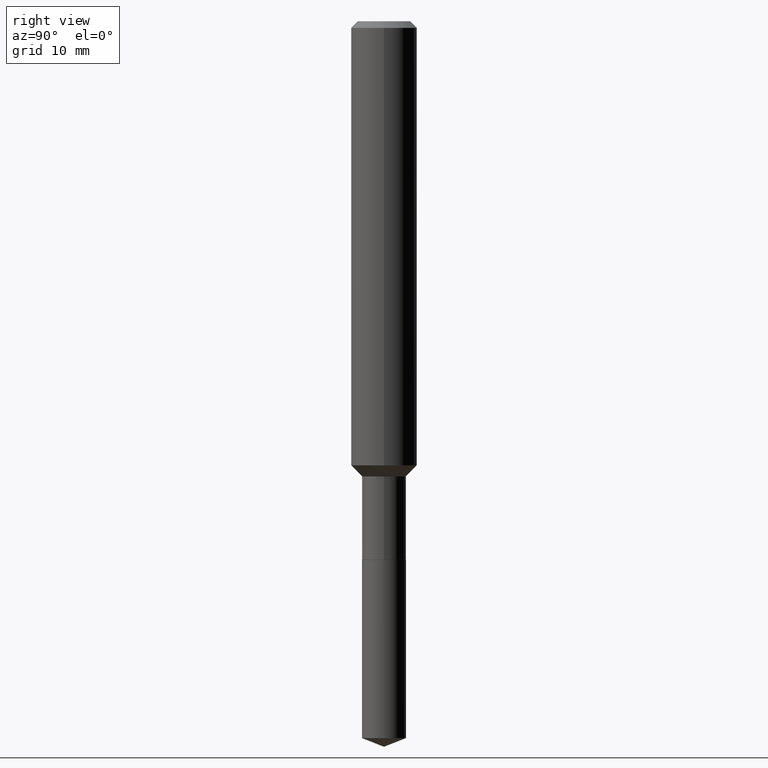
[diagram: clean part render]
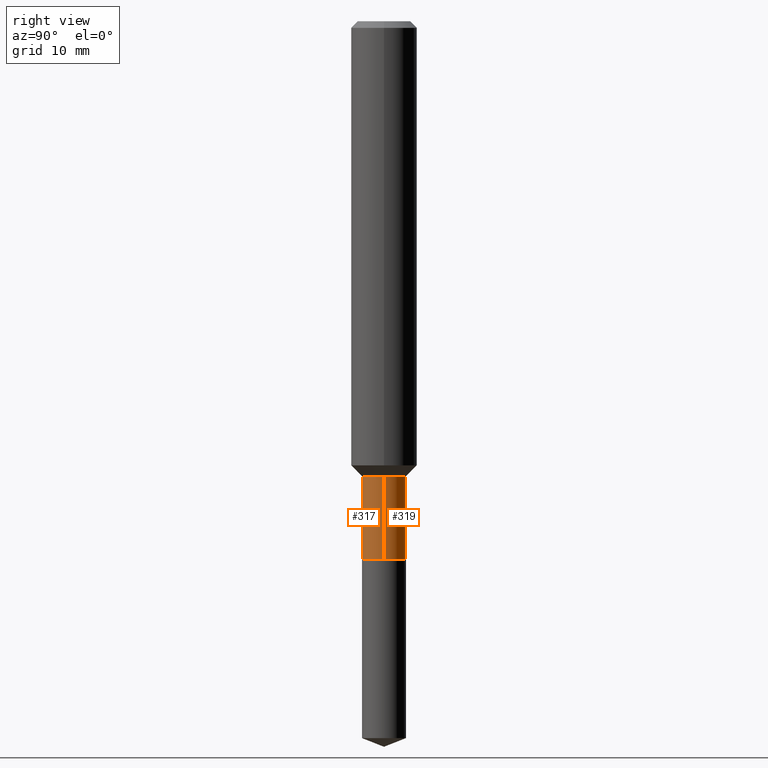
[diagram: same view with one multi-face feature highlighted, each face labeled with its STEP entity id]
A machine part, right view. The highlighted faces form ONE feature: a constant-radius fillet chain: 2 tangent blend faces with common blend radius 2.0002 mm. The faces share edges in the B-rep.
Their STEP definitions:
[1] entity #319 (Cylinder):
#11 = DIRECTION ( 'NONE',  ( -2.445468806185136597E-29, 3.491481338843145583E-15, 1.000000000000000000 ) ) ;
#15 = CARTESIAN_POINT ( 'NONE',  ( 4.716331139608654438E-29, -6.733670910092890989E-15, -1.928600000000000092 ) ) ;
#19 = DIRECTION ( 'NONE',  ( -2.445468806185136877E-29, 3.491481338843145188E-15, 1.000000000000000000 ) ) ;
#30 = AXIS2_PLACEMENT_3D ( 'NONE', #383, #50, #201 ) ;
#50 = DIRECTION ( 'NONE',  ( -2.445468806185136597E-29, 3.491481338843145583E-15, 1.000000000000000000 ) ) ;
#55 = CARTESIAN_POINT ( 'NONE',  ( -0.07874999999999997280, 5.595524044110787031E-16, -3.873661383575737091E-30 ) ) ;
#57 = CARTESIAN_POINT ( 'NONE',  ( -0.07874999999999995892, -5.652665767725588167E-15, -1.629899999999999682 ) ) ;
#64 = VECTOR ( 'NONE', #19, 39.37007874015748143 ) ;
#98 = VERTEX_POINT ( 'NONE', #378 ) ;
#104 = DIRECTION ( 'NONE',  ( 1.000000000000000000, -6.982962677686267499E-15, 4.876176775795935793E-29 ) ) ;
#130 = EDGE_LOOP ( 'NONE', ( #392, #286, #175, #474 ) ) ;
#132 = CIRCLE ( 'NONE', #429, 0.07875000000000000056 ) ;
#133 = CARTESIAN_POINT ( 'NONE',  ( 0.000000000000000000, 0.000000000000000000, 0.000000000000000000 ) ) ;
#160 = DIRECTION ( 'NONE',  ( 1.000000000000000000, -6.982962677686261977E-15, 0.000000000000000000 ) ) ;
#174 = CARTESIAN_POINT ( 'NONE',  ( 0.07875000000000000056, -7.283579220960683546E-15, -1.928600000000000092 ) ) ;
#175 = ORIENTED_EDGE ( 'NONE', *, *, #179, .F. ) ;
#179 = EDGE_CURVE ( 'NONE', #98, #196, #446, .T. ) ;
#196 = VERTEX_POINT ( 'NONE', #57 ) ;
#199 = LINE ( 'NONE', #55, #439 ) ;
#201 = DIRECTION ( 'NONE',  ( 1.000000000000000000, -6.982962677686265922E-15, 0.000000000000000000 ) ) ;
#207 = CARTESIAN_POINT ( 'NONE',  ( 0.07874999999999997280, -5.499083108677933457E-16, 3.839989210939298316E-30 ) ) ;
#210 = VERTEX_POINT ( 'NONE', #276 ) ;
#218 = EDGE_CURVE ( 'NONE', #367, #210, #132, .T. ) ;
#253 = CYLINDRICAL_SURFACE ( 'NONE', #292, 0.07874999999999997280 ) ;
#257 = DIRECTION ( 'NONE',  ( -2.445468806185136597E-29, 3.491481338843145583E-15, 1.000000000000000000 ) ) ;
#276 = CARTESIAN_POINT ( 'NONE',  ( -0.07875000000000000056, -5.652665767725588167E-15, -1.928600000000000092 ) ) ;
#286 = ORIENTED_EDGE ( 'NONE', *, *, #303, .T. ) ;
#292 = AXIS2_PLACEMENT_3D ( 'NONE', #133, #257, #104 ) ;
#303 = EDGE_CURVE ( 'NONE', #210, #196, #199, .T. ) ;
#319 = ADVANCED_FACE ( 'NONE', ( #483 ), #253, .T. ) ;
#345 = DIRECTION ( 'NONE',  ( -2.445468806185136877E-29, 3.491481338843145188E-15, 1.000000000000000000 ) ) ;
#367 = VERTEX_POINT ( 'NONE', #174 ) ;
#378 = CARTESIAN_POINT ( 'NONE',  ( 0.07874999999999995892, -6.240673745048234716E-15, -1.629899999999999682 ) ) ;
#383 = CARTESIAN_POINT ( 'NONE',  ( 3.985869607201153397E-29, -5.690765434180441370E-15, -1.629899999999999682 ) ) ;
#392 = ORIENTED_EDGE ( 'NONE', *, *, #218, .T. ) ;
#419 = EDGE_CURVE ( 'NONE', #367, #98, #473, .T. ) ;
#429 = AXIS2_PLACEMENT_3D ( 'NONE', #15, #11, #160 ) ;
#439 = VECTOR ( 'NONE', #345, 39.37007874015748143 ) ;
#446 = CIRCLE ( 'NONE', #30, 0.07874999999999995892 ) ;
#473 = LINE ( 'NONE', #207, #64 ) ;
#474 = ORIENTED_EDGE ( 'NONE', *, *, #419, .F. ) ;
#483 = FACE_OUTER_BOUND ( 'NONE', #130, .T. ) ;
[2] entity #317 (Cylinder):
#19 = DIRECTION ( 'NONE',  ( -2.445468806185136877E-29, 3.491481338843145188E-15, 1.000000000000000000 ) ) ;
#20 = DIRECTION ( 'NONE',  ( -2.445468806185136597E-29, 3.491481338843145583E-15, 1.000000000000000000 ) ) ;
#25 = CARTESIAN_POINT ( 'NONE',  ( 0.000000000000000000, 0.000000000000000000, 0.000000000000000000 ) ) ;
#55 = CARTESIAN_POINT ( 'NONE',  ( -0.07874999999999997280, 5.595524044110787031E-16, -3.873661383575737091E-30 ) ) ;
#57 = CARTESIAN_POINT ( 'NONE',  ( -0.07874999999999995892, -5.652665767725588167E-15, -1.629899999999999682 ) ) ;
#60 = ORIENTED_EDGE ( 'NONE', *, *, #314, .T. ) ;
#64 = VECTOR ( 'NONE', #19, 39.37007874015748143 ) ;
#66 = ORIENTED_EDGE ( 'NONE', *, *, #419, .T. ) ;
#98 = VERTEX_POINT ( 'NONE', #378 ) ;
#103 = CIRCLE ( 'NONE', #272, 0.07874999999999995892 ) ;
#127 = DIRECTION ( 'NONE',  ( -2.445468806185136597E-29, 3.491481338843145583E-15, 1.000000000000000000 ) ) ;
#138 = CARTESIAN_POINT ( 'NONE',  ( 3.985869607201153397E-29, -5.690765434180441370E-15, -1.629899999999999682 ) ) ;
#150 = ORIENTED_EDGE ( 'NONE', *, *, #303, .F. ) ;
#174 = CARTESIAN_POINT ( 'NONE',  ( 0.07875000000000000056, -7.283579220960683546E-15, -1.928600000000000092 ) ) ;
#196 = VERTEX_POINT ( 'NONE', #57 ) ;
#199 = LINE ( 'NONE', #55, #439 ) ;
#207 = CARTESIAN_POINT ( 'NONE',  ( 0.07874999999999997280, -5.499083108677933457E-16, 3.839989210939298316E-30 ) ) ;
#209 = DIRECTION ( 'NONE',  ( -2.445468806185136597E-29, 3.491481338843145583E-15, 1.000000000000000000 ) ) ;
#210 = VERTEX_POINT ( 'NONE', #276 ) ;
#219 = CIRCLE ( 'NONE', #422, 0.07875000000000000056 ) ;
#272 = AXIS2_PLACEMENT_3D ( 'NONE', #138, #209, #486 ) ;
#276 = CARTESIAN_POINT ( 'NONE',  ( -0.07875000000000000056, -5.652665767725588167E-15, -1.928600000000000092 ) ) ;
#278 = DIRECTION ( 'NONE',  ( 1.000000000000000000, -6.982962677686261977E-15, 0.000000000000000000 ) ) ;
#303 = EDGE_CURVE ( 'NONE', #210, #196, #199, .T. ) ;
#314 = EDGE_CURVE ( 'NONE', #210, #367, #219, .T. ) ;
#317 = ADVANCED_FACE ( 'NONE', ( #442 ), #469, .T. ) ;
#345 = DIRECTION ( 'NONE',  ( -2.445468806185136877E-29, 3.491481338843145188E-15, 1.000000000000000000 ) ) ;
#353 = AXIS2_PLACEMENT_3D ( 'NONE', #25, #20, #364 ) ;
#364 = DIRECTION ( 'NONE',  ( 1.000000000000000000, -6.982962677686267499E-15, 4.876176775795935793E-29 ) ) ;
#367 = VERTEX_POINT ( 'NONE', #174 ) ;
#378 = CARTESIAN_POINT ( 'NONE',  ( 0.07874999999999995892, -6.240673745048234716E-15, -1.629899999999999682 ) ) ;
#419 = EDGE_CURVE ( 'NONE', #367, #98, #473, .T. ) ;
#422 = AXIS2_PLACEMENT_3D ( 'NONE', #463, #127, #278 ) ;
#423 = EDGE_LOOP ( 'NONE', ( #150, #60, #66, #487 ) ) ;
#439 = VECTOR ( 'NONE', #345, 39.37007874015748143 ) ;
#442 = FACE_OUTER_BOUND ( 'NONE', #423, .T. ) ;
#463 = CARTESIAN_POINT ( 'NONE',  ( 4.716331139608654438E-29, -6.733670910092890989E-15, -1.928600000000000092 ) ) ;
#469 = CYLINDRICAL_SURFACE ( 'NONE', #353, 0.07874999999999997280 ) ;
#473 = LINE ( 'NONE', #207, #64 ) ;
#475 = EDGE_CURVE ( 'NONE', #196, #98, #103, .T. ) ;
#486 = DIRECTION ( 'NONE',  ( 1.000000000000000000, -6.982962677686265922E-15, 0.000000000000000000 ) ) ;
#487 = ORIENTED_EDGE ( 'NONE', *, *, #475, .F. ) ;